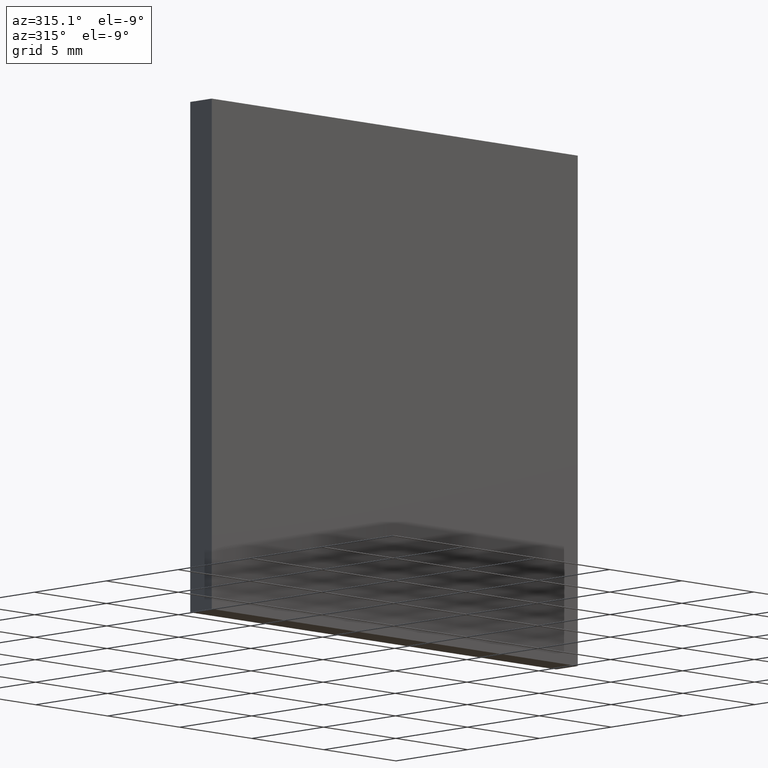
[diagram: clean part render]
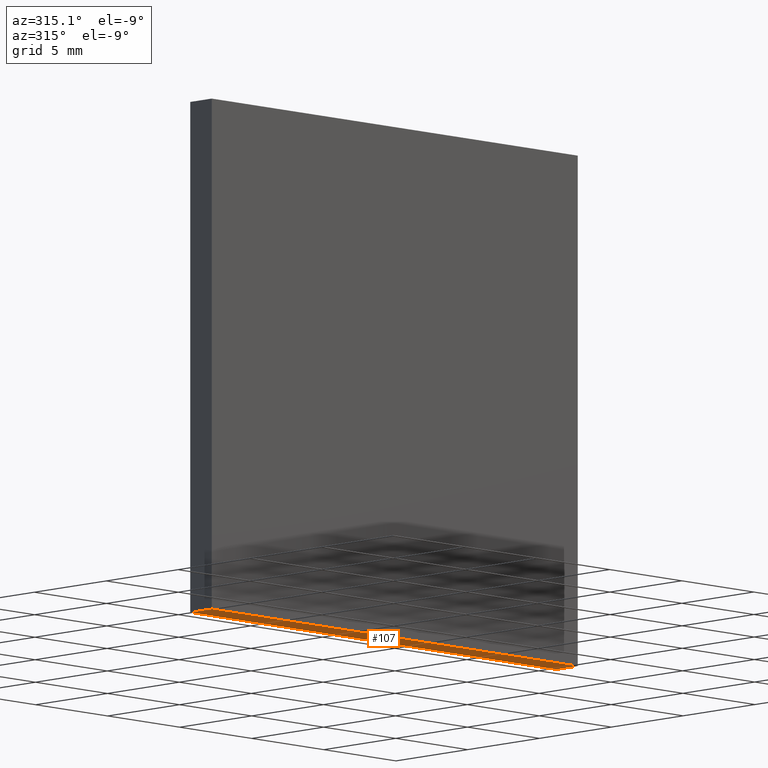
[diagram: same view with one face highlighted and labeled with its STEP entity id]
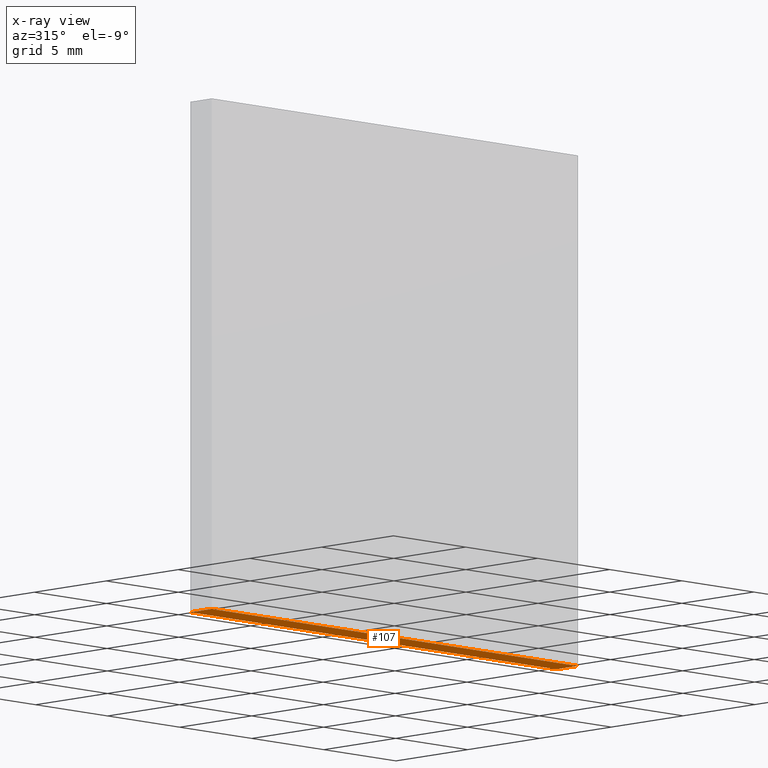
[diagram: x-ray of the same camera — body ghosted, the highlighted face saturated]
A machine part, auxiliary view. The second image highlights one B-rep face of the part: STEP entity #107.
The next image is the same camera in x-ray: the body ghosted, the highlighted face saturated — about 0% of this face is hidden behind the body in this view.
In plain terms, the highlighted planar face has unit normal (0, 0, 1).
Its self-contained STEP definition (entity closure, byte-faithful):
#1 = CARTESIAN_POINT ( 'NONE',  ( -12.70000000000000100, 0.0000000000000000000, -12.69999999999999800 ) ) ;
#5 = ORIENTED_EDGE ( 'NONE', *, *, #194, .T. ) ;
#6 = VERTEX_POINT ( 'NONE', #64 ) ;
#17 = LINE ( 'NONE', #21, #79 ) ;
#18 = DIRECTION ( 'NONE',  ( -1.000000000000000000, -0.0000000000000000000, -0.0000000000000000000 ) ) ;
#19 = CARTESIAN_POINT ( 'NONE',  ( -12.70000000000000100, 1.500000000000000000, -12.69999999999999800 ) ) ;
#21 = CARTESIAN_POINT ( 'NONE',  ( 12.69999999999999800, 1.500000000000000000, -12.69999999999999800 ) ) ;
#25 = LINE ( 'NONE', #67, #28 ) ;
#27 = CARTESIAN_POINT ( 'NONE',  ( 12.69999999999999800, 1.500000000000000000, -12.69999999999999800 ) ) ;
#28 = VECTOR ( 'NONE', #157, 1000.000000000000000 ) ;
#38 = VECTOR ( 'NONE', #18, 1000.000000000000000 ) ;
#41 = VERTEX_POINT ( 'NONE', #27 ) ;
#44 = ORIENTED_EDGE ( 'NONE', *, *, #105, .F. ) ;
#51 = EDGE_CURVE ( 'NONE', #132, #200, #86, .T. ) ;
#56 = DIRECTION ( 'NONE',  ( -0.0000000000000000000, -1.000000000000000000, -0.0000000000000000000 ) ) ;
#60 = LINE ( 'NONE', #102, #38 ) ;
#61 = DIRECTION ( 'NONE',  ( 0.0000000000000000000, 0.0000000000000000000, 1.000000000000000000 ) ) ;
#64 = CARTESIAN_POINT ( 'NONE',  ( 12.69999999999999800, 0.0000000000000000000, -12.69999999999999800 ) ) ;
#67 = CARTESIAN_POINT ( 'NONE',  ( -12.70000000000000100, 1.500000000000000000, -12.69999999999999800 ) ) ;
#71 = ORIENTED_EDGE ( 'NONE', *, *, #128, .T. ) ;
#72 = DIRECTION ( 'NONE',  ( -0.0000000000000000000, -1.000000000000000000, -0.0000000000000000000 ) ) ;
#74 = CARTESIAN_POINT ( 'NONE',  ( -12.70000000000000100, 1.500000000000000000, -12.69999999999999800 ) ) ;
#79 = VECTOR ( 'NONE', #56, 1000.000000000000000 ) ;
#86 = LINE ( 'NONE', #123, #183 ) ;
#102 = CARTESIAN_POINT ( 'NONE',  ( -12.70000000000000100, 0.0000000000000000000, -12.69999999999999800 ) ) ;
#105 = EDGE_CURVE ( 'NONE', #41, #132, #25, .T. ) ;
#106 = AXIS2_PLACEMENT_3D ( 'NONE', #74, #61, #139 ) ;
#107 = ADVANCED_FACE ( 'NONE', ( #168 ), #174, .F. ) ;
#123 = CARTESIAN_POINT ( 'NONE',  ( -12.70000000000000100, 1.500000000000000000, -12.69999999999999800 ) ) ;
#128 = EDGE_CURVE ( 'NONE', #41, #6, #17, .T. ) ;
#132 = VERTEX_POINT ( 'NONE', #19 ) ;
#139 = DIRECTION ( 'NONE',  ( 1.000000000000000000, 0.0000000000000000000, -0.0000000000000000000 ) ) ;
#157 = DIRECTION ( 'NONE',  ( -1.000000000000000000, -0.0000000000000000000, -0.0000000000000000000 ) ) ;
#165 = ORIENTED_EDGE ( 'NONE', *, *, #51, .F. ) ;
#168 = FACE_OUTER_BOUND ( 'NONE', #169, .T. ) ;
#169 = EDGE_LOOP ( 'NONE', ( #5, #165, #44, #71 ) ) ;
#174 = PLANE ( 'NONE',  #106 ) ;
#183 = VECTOR ( 'NONE', #72, 1000.000000000000000 ) ;
#194 = EDGE_CURVE ( 'NONE', #6, #200, #60, .T. ) ;
#200 = VERTEX_POINT ( 'NONE', #1 ) ;